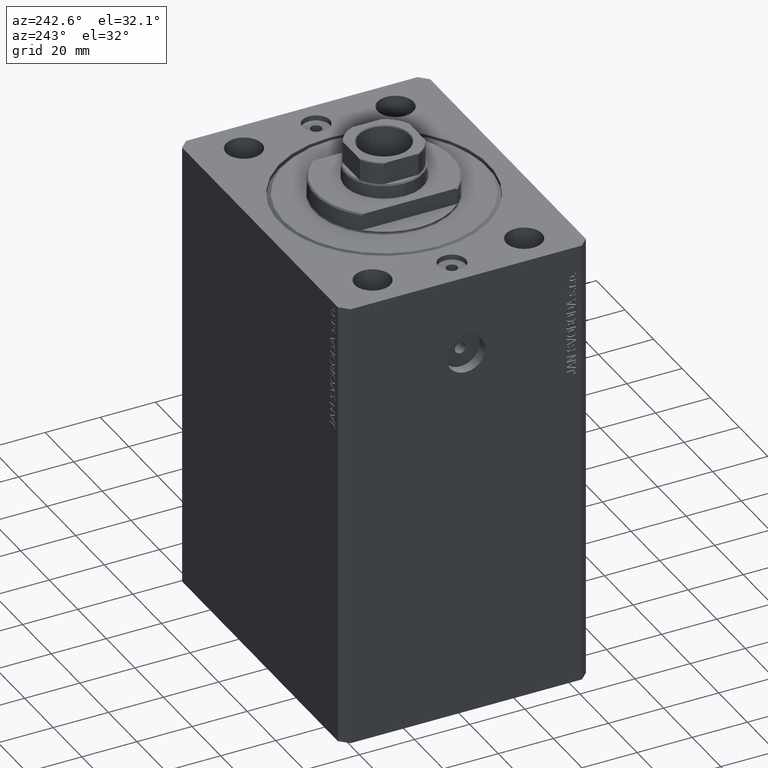
[diagram: clean part render]
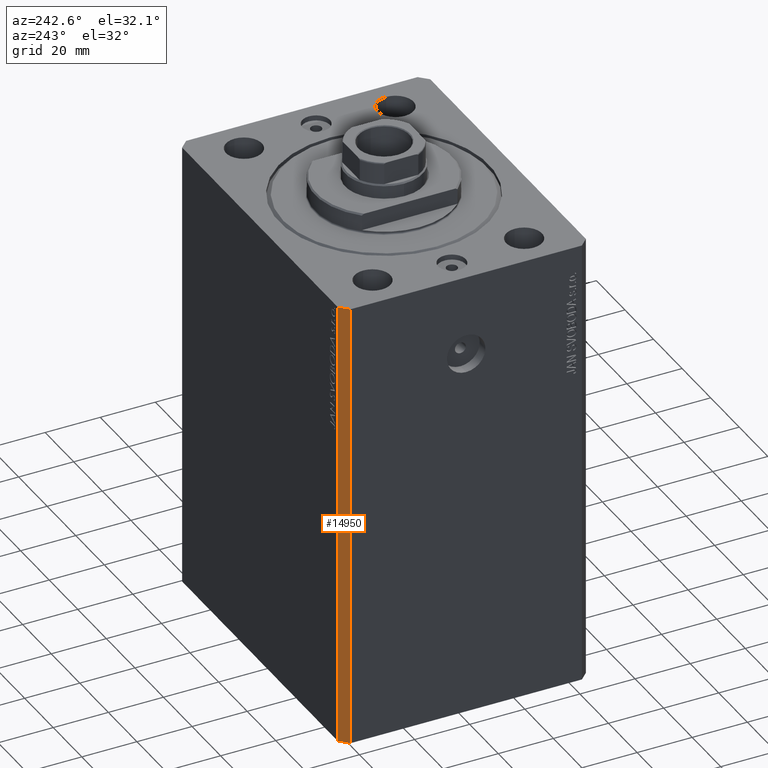
[diagram: same view with one face highlighted and labeled with its STEP entity id]
A machine part, auxiliary view. The second image highlights one B-rep face of the part: STEP entity #14950.
In plain terms, the highlighted planar face has unit normal (-0.7071, 0.7071, 0).
Its self-contained STEP definition (entity closure, byte-faithful):
#465 = DIRECTION ( 'NONE',  ( -0.7071067811865466846, 0.7071067811865483499, 0.000000000000000000 ) ) ;
#2918 = ORIENTED_EDGE ( 'NONE', *, *, #42022, .F. ) ;
#4143 = LINE ( 'NONE', #14699, #31522 ) ;
#6402 = VERTEX_POINT ( 'NONE', #26519 ) ;
#8555 = LINE ( 'NONE', #39149, #33650 ) ;
#8833 = CARTESIAN_POINT ( 'NONE',  ( -54.49999999999999289, 45.00000000000000000, 0.000000000000000000 ) ) ;
#8976 = EDGE_CURVE ( 'NONE', #32155, #6402, #25916, .T. ) ;
#10368 = DIRECTION ( 'NONE',  ( -0.7071067811865483499, -0.7071067811865466846, 0.000000000000000000 ) ) ;
#12301 = VERTEX_POINT ( 'NONE', #37841 ) ;
#14089 = CARTESIAN_POINT ( 'NONE',  ( -54.49999999999999289, 45.00000000000000000, -165.0000000000000000 ) ) ;
#14699 = CARTESIAN_POINT ( 'NONE',  ( -54.49999999999999289, 45.00000000000000000, -165.0000000000000000 ) ) ;
#14950 = ADVANCED_FACE ( 'NONE', ( #41180 ), #38236, .T. ) ;
#18327 = VERTEX_POINT ( 'NONE', #18888 ) ;
#18888 = CARTESIAN_POINT ( 'NONE',  ( -54.49999999999999289, 45.00000000000000000, -165.0000000000000000 ) ) ;
#20079 = ORIENTED_EDGE ( 'NONE', *, *, #8976, .F. ) ;
#20690 = CARTESIAN_POINT ( 'NONE',  ( -54.49999999999999289, 45.00000000000000000, -165.0000000000000000 ) ) ;
#22175 = VECTOR ( 'NONE', #31637, 1000.000000000000000 ) ;
#24925 = CARTESIAN_POINT ( 'NONE',  ( -54.49999999999999289, 45.00000000000000000, 0.000000000000000000 ) ) ;
#25916 = LINE ( 'NONE', #8833, #32504 ) ;
#26309 = DIRECTION ( 'NONE',  ( 0.000000000000000000, 0.000000000000000000, 1.000000000000000000 ) ) ;
#26519 = CARTESIAN_POINT ( 'NONE',  ( -57.49999999999998579, 42.00000000000000711, 0.000000000000000000 ) ) ;
#28671 = ORIENTED_EDGE ( 'NONE', *, *, #41772, .T. ) ;
#31522 = VECTOR ( 'NONE', #41477, 1000.000000000000000 ) ;
#31637 = DIRECTION ( 'NONE',  ( -0.7071067811865483499, -0.7071067811865466846, 0.000000000000000000 ) ) ;
#32155 = VERTEX_POINT ( 'NONE', #24925 ) ;
#32504 = VECTOR ( 'NONE', #32669, 1000.000000000000000 ) ;
#32669 = DIRECTION ( 'NONE',  ( -0.7071067811865483499, -0.7071067811865466846, 0.000000000000000000 ) ) ;
#33650 = VECTOR ( 'NONE', #26309, 1000.000000000000000 ) ;
#34763 = ORIENTED_EDGE ( 'NONE', *, *, #40968, .T. ) ;
#37841 = CARTESIAN_POINT ( 'NONE',  ( -57.49999999999998579, 42.00000000000000711, -165.0000000000000000 ) ) ;
#38236 = PLANE ( 'NONE',  #44140 ) ;
#39149 = CARTESIAN_POINT ( 'NONE',  ( -57.49999999999998579, 42.00000000000000711, -165.0000000000000000 ) ) ;
#40968 = EDGE_CURVE ( 'NONE', #12301, #6402, #8555, .T. ) ;
#41180 = FACE_OUTER_BOUND ( 'NONE', #42638, .T. ) ;
#41477 = DIRECTION ( 'NONE',  ( 0.000000000000000000, 0.000000000000000000, 1.000000000000000000 ) ) ;
#41772 = EDGE_CURVE ( 'NONE', #18327, #12301, #42202, .T. ) ;
#42022 = EDGE_CURVE ( 'NONE', #18327, #32155, #4143, .T. ) ;
#42202 = LINE ( 'NONE', #14089, #22175 ) ;
#42638 = EDGE_LOOP ( 'NONE', ( #20079, #2918, #28671, #34763 ) ) ;
#44140 = AXIS2_PLACEMENT_3D ( 'NONE', #20690, #465, #10368 ) ;